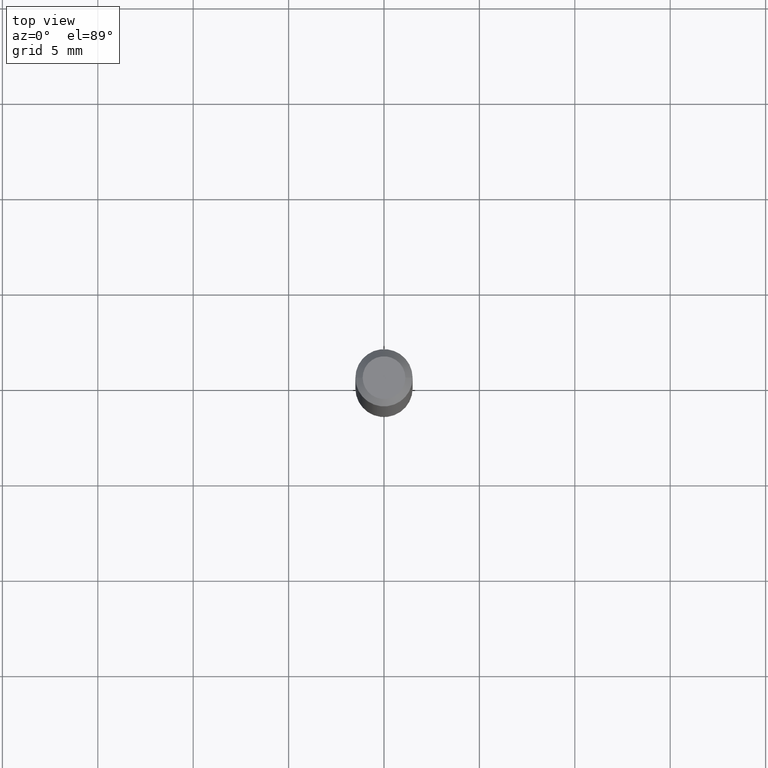
[diagram: clean part render]
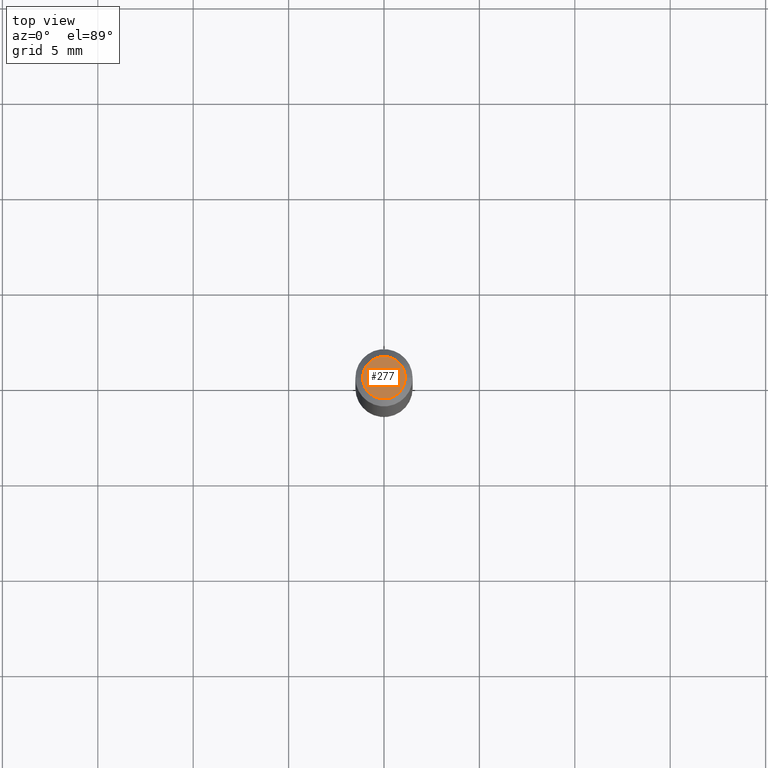
[diagram: same view with one face highlighted and labeled with its STEP entity id]
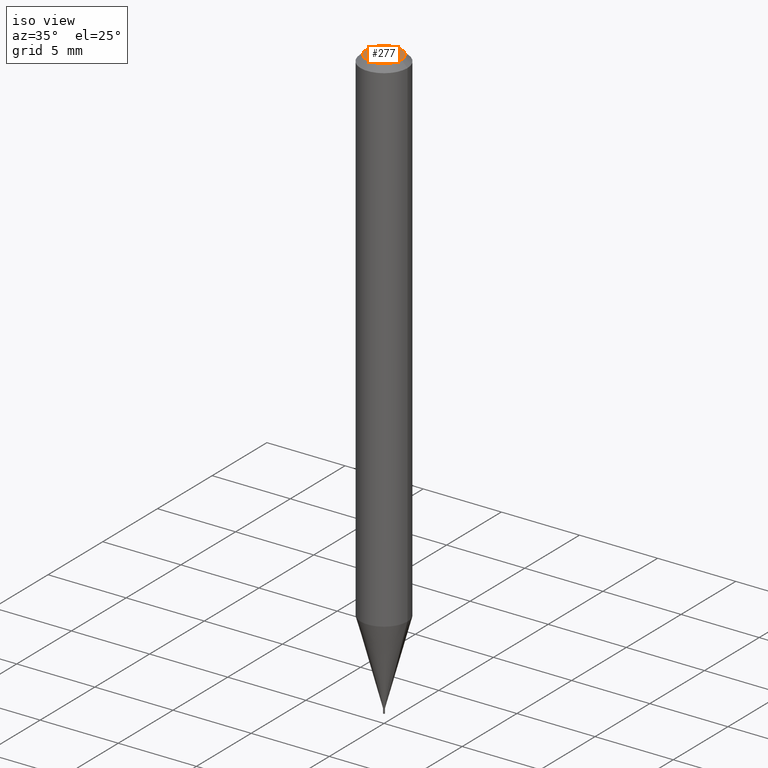
[diagram: same view with one face highlighted and labeled with its STEP entity id]
A machine part, top view. The second image highlights one B-rep face of the part: STEP entity #277.
A second angle (iso view) of the same face is appended — the face is thin or edge-on in the first view.
In plain terms, the highlighted planar face has unit normal (0, -0, -1).
Its self-contained STEP definition (entity closure, byte-faithful):
#13 = AXIS2_PLACEMENT_3D ( 'NONE', #312, #420, #104 ) ;
#51 = CIRCLE ( 'NONE', #233, 0.04404999999999999888 ) ;
#62 = ORIENTED_EDGE ( 'NONE', *, *, #195, .T. ) ;
#69 = VERTEX_POINT ( 'NONE', #359 ) ;
#100 = EDGE_LOOP ( 'NONE', ( #114, #62 ) ) ;
#101 = DIRECTION ( 'NONE',  ( 2.438088387897960049E-29, -3.491481338843145188E-15, -1.000000000000000000 ) ) ;
#104 = DIRECTION ( 'NONE',  ( 1.000000000000000000, -6.982962677686265922E-15, 4.957392940945096353E-29 ) ) ;
#114 = ORIENTED_EDGE ( 'NONE', *, *, #136, .T. ) ;
#116 = CARTESIAN_POINT ( 'NONE',  ( 0.04404999999999999888, -3.798447818264435920E-16, 1.385461786529513839E-15 ) ) ;
#135 = CARTESIAN_POINT ( 'NONE',  ( 3.075995059520799729E-16, 0.04404999999999999888, 5.389311402887151581E-16 ) ) ;
#136 = EDGE_CURVE ( 'NONE', #69, #416, #415, .T. ) ;
#179 = AXIS2_PLACEMENT_3D ( 'NONE', #135, #101, #241 ) ;
#195 = EDGE_CURVE ( 'NONE', #416, #69, #51, .T. ) ;
#207 = PLANE ( 'NONE',  #179 ) ;
#233 = AXIS2_PLACEMENT_3D ( 'NONE', #319, #355, #417 ) ;
#241 = DIRECTION ( 'NONE',  ( -1.000000000000000000, 6.982962677686265922E-15, -4.876176775795935793E-29 ) ) ;
#277 = ADVANCED_FACE ( 'NONE', ( #455 ), #207, .F. ) ;
#312 = CARTESIAN_POINT ( 'NONE',  ( -3.388103581119451124E-44, 4.837313973348075593E-30, 1.385461786529511472E-15 ) ) ;
#319 = CARTESIAN_POINT ( 'NONE',  ( -3.388103581119451124E-44, 4.837313973348075593E-30, 1.385461786529511472E-15 ) ) ;
#355 = DIRECTION ( 'NONE',  ( -2.445468806185136597E-29, 3.491481338843145583E-15, 1.000000000000000000 ) ) ;
#359 = CARTESIAN_POINT ( 'NONE',  ( -0.04404999999999999888, 3.337856159934058298E-16, 1.385461786529509303E-15 ) ) ;
#415 = CIRCLE ( 'NONE', #13, 0.04404999999999999888 ) ;
#416 = VERTEX_POINT ( 'NONE', #116 ) ;
#417 = DIRECTION ( 'NONE',  ( 1.000000000000000000, -6.982962677686265922E-15, 4.957392940945096353E-29 ) ) ;
#420 = DIRECTION ( 'NONE',  ( -2.445468806185136597E-29, 3.491481338843145583E-15, 1.000000000000000000 ) ) ;
#455 = FACE_OUTER_BOUND ( 'NONE', #100, .T. ) ;